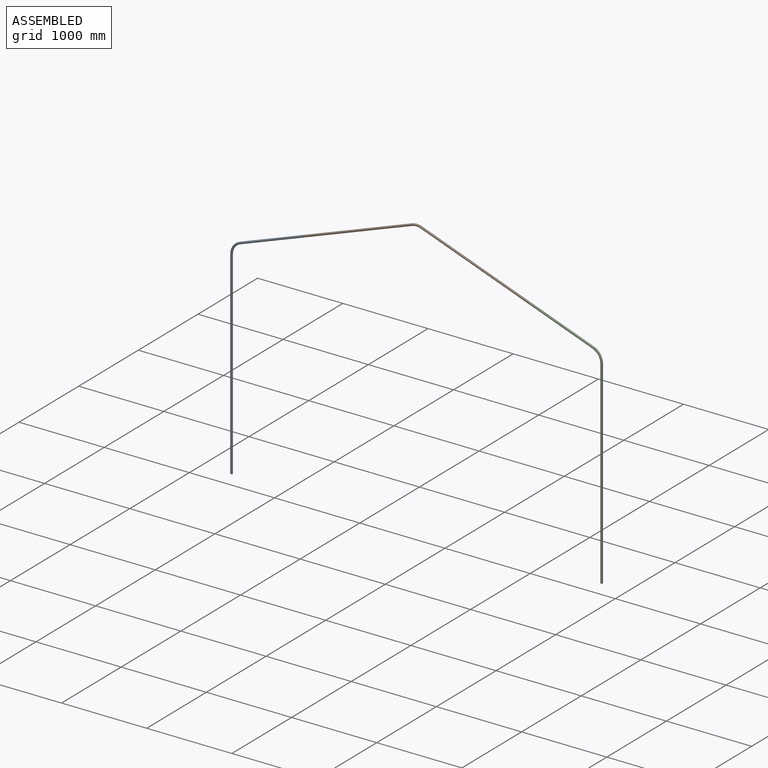
[diagram: assembled view]
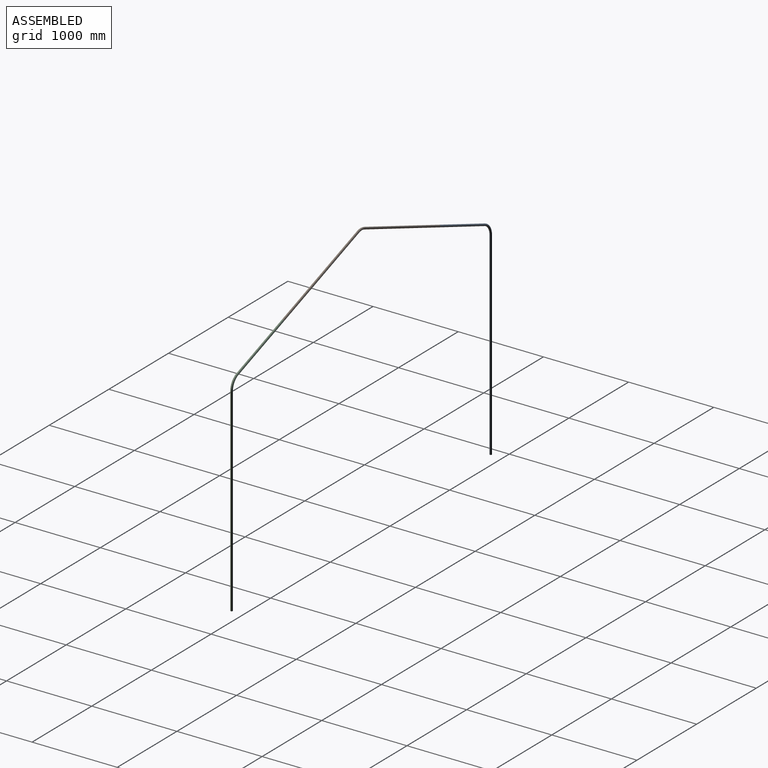
[diagram: assembled view, second angle]
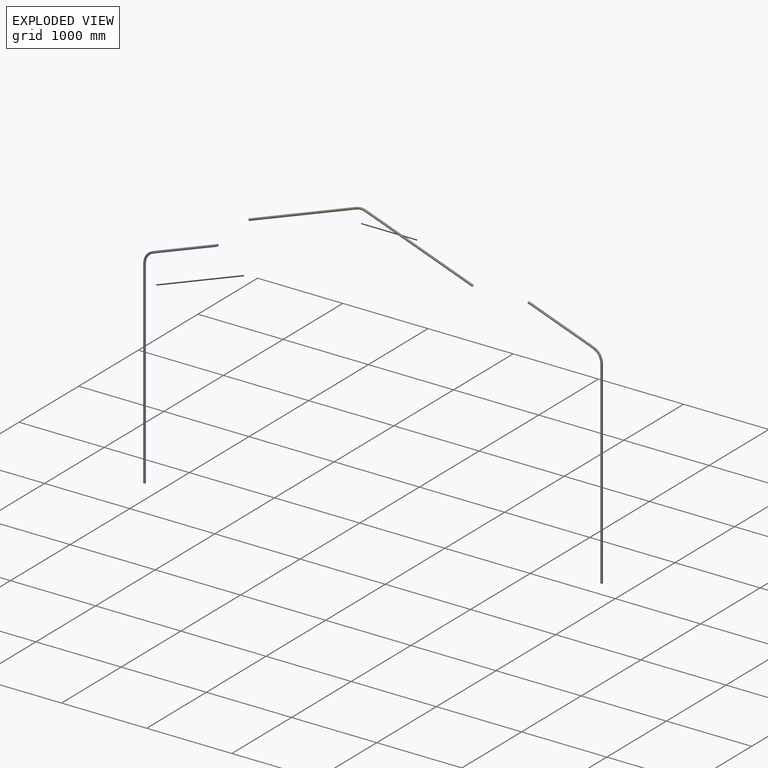
[diagram: exploded view]
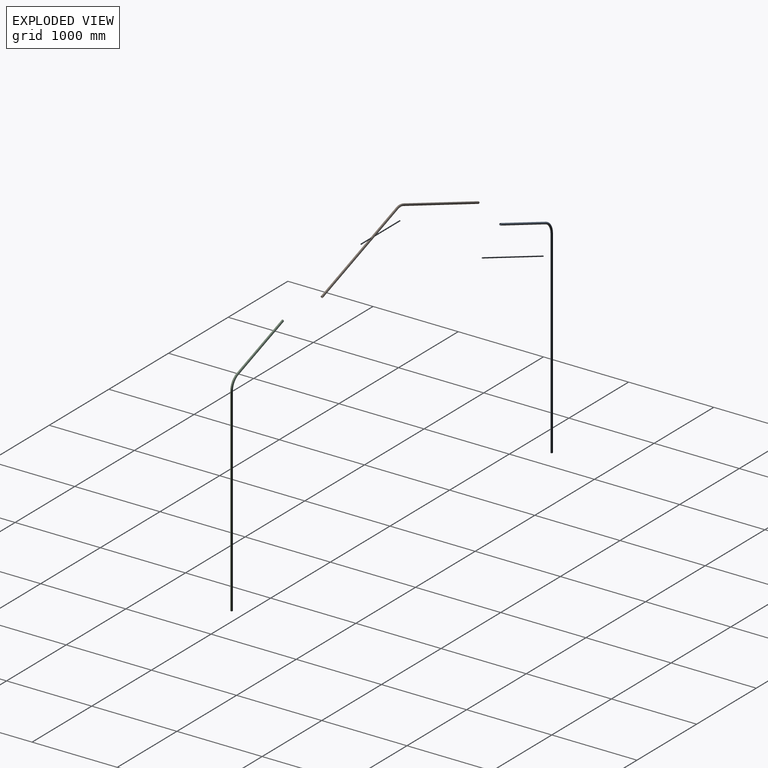
[diagram: exploded view, second angle]
ASSEMBLY  parts=3 mates=2
PART A: 8 faces, bbox 889.9x25.4x2763.1 mm
  f0: cylinder r=11.11mm len=2331.69mm, axis (0,0,1), area 162802.9mm2, adj f1,f3
  f1: torus R=152.4mm, axis (0,1,0), area 13000.3mm2, adj f0,f2
  f2: cylinder r=11.11mm len=766.58mm, axis (0.94,0,0.34), area 56394.3mm2, adj f1,f4
  f3: plane 25.4x25.4mm, normal (0,0,-1), area 118.8mm2, adj f0,f5
  f4: plane 25.4x23.87mm, normal (0.94,0,0.34), area 118.8mm2, adj f2,f7
  f5: cylinder r=12.7mm len=2331.69mm, axis (0,0,1), area 186060.5mm2, adj f3,f6
  f6: torus R=152.4mm, axis (0,1,0), area 14857.4mm2, adj f5,f7
  f7: cylinder r=12.7mm len=767.67mm, axis (0.94,0,0.34), area 64450.7mm2, adj f4,f6
PART B: 8 faces, bbox 2634.2x25.4x506.3 mm
  f0: cylinder r=11.11mm len=1268.23mm, axis (0.94,0,0.34), area 93668.2mm2, adj f1,f3
  f1: torus R=152.4mm, axis (0,1,0), area 7428.7mm2, adj f0,f2
  f2: cylinder r=11.11mm len=1268.23mm, axis (0.94,0,-0.34), area 93668.2mm2, adj f1,f4
  f3: plane 25.4x23.87mm, normal (-0.94,0,-0.34), area 118.8mm2, adj f0,f5
  f4: plane 25.4x23.87mm, normal (0.94,0,-0.34), area 118.8mm2, adj f2,f7
  f5: cylinder r=12.7mm len=1269.31mm, axis (0.94,0,0.34), area 107049.4mm2, adj f3,f6
  f6: torus R=152.4mm, axis (0,1,0), area 8490mm2, adj f5,f7
  f7: cylinder r=12.7mm len=1269.31mm, axis (0.94,0,-0.34), area 107049.4mm2, adj f4,f6
PART C: same geometry as A
PLACE A t=(-236.06,-584.01,1247.94)mm
PLACE B t=(1076.69,-584.01,1725.74)mm
PLACE C rot(axis=(0,0,1),180deg) t=(2389.44,-584.01,1247.94)mm
MATE fastened B.f0 <-> A.f2  axis (0.94,0,0.34) through (-236.06,-584.01,1247.94)mm
MATE fastened C.f2 <-> B.f2  axis (-0.94,0,0.34) through (2389.44,-584.01,1247.94)mm
